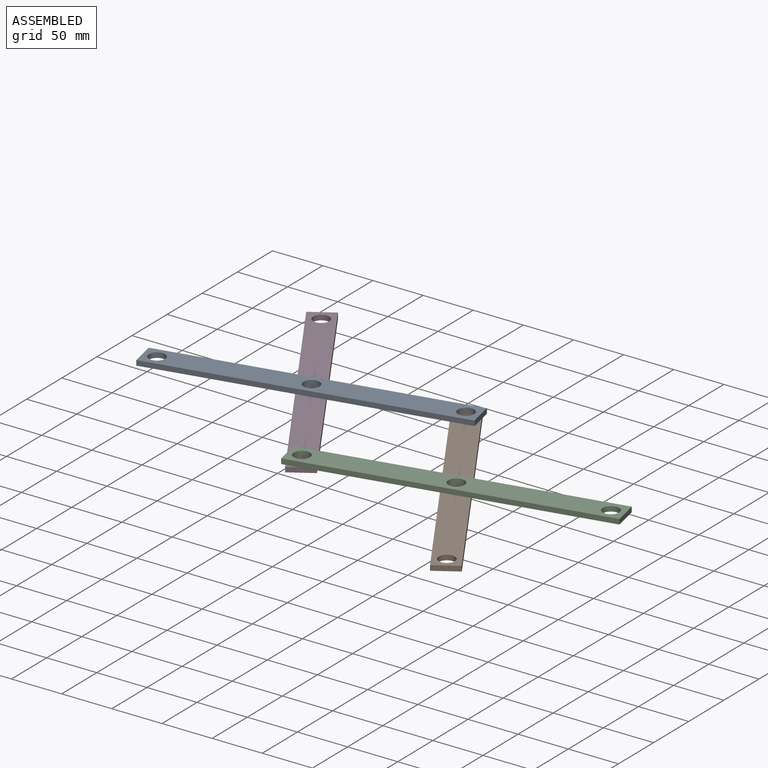
[diagram: assembled view]
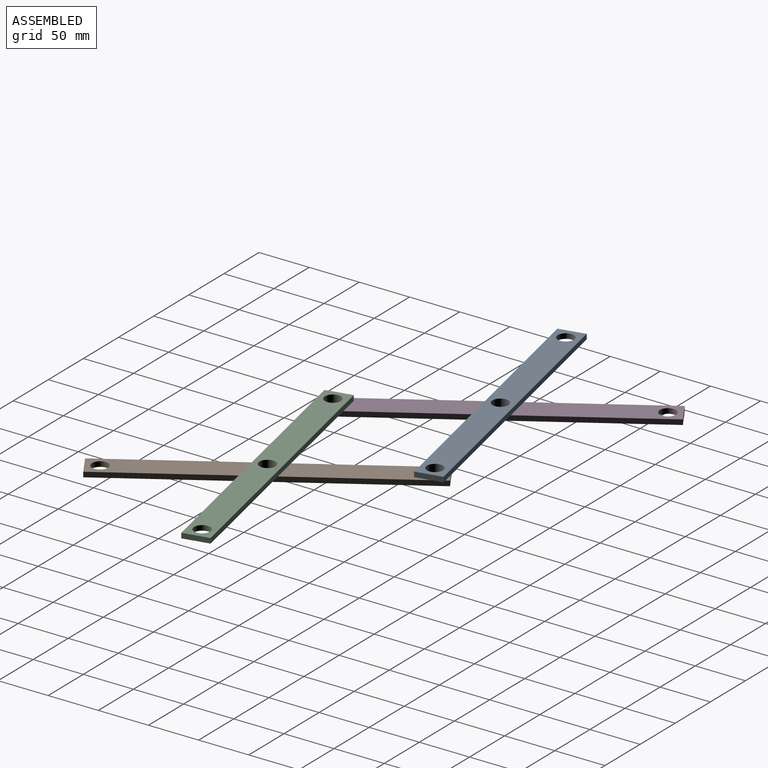
[diagram: assembled view, second angle]
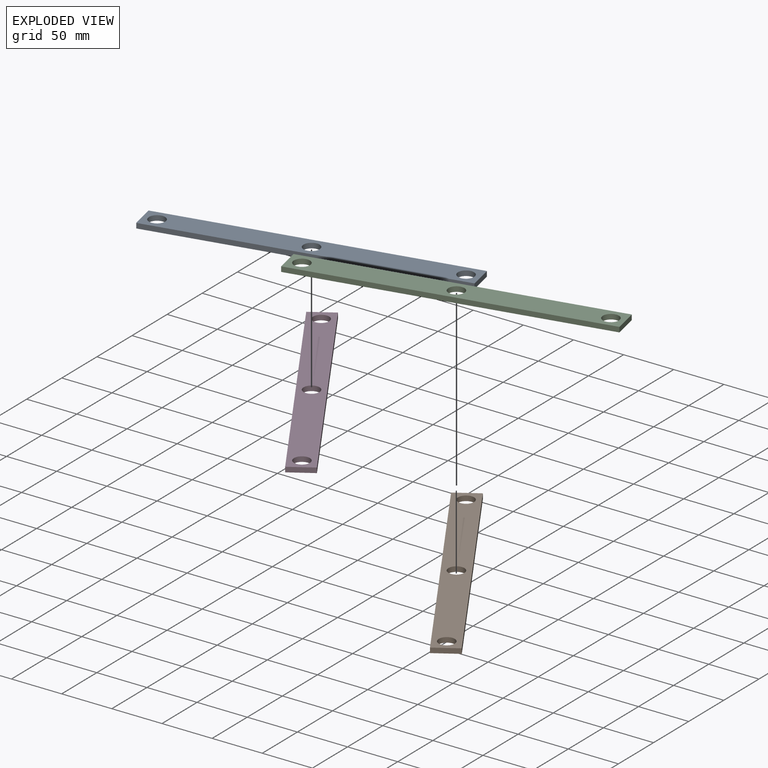
[diagram: exploded view]
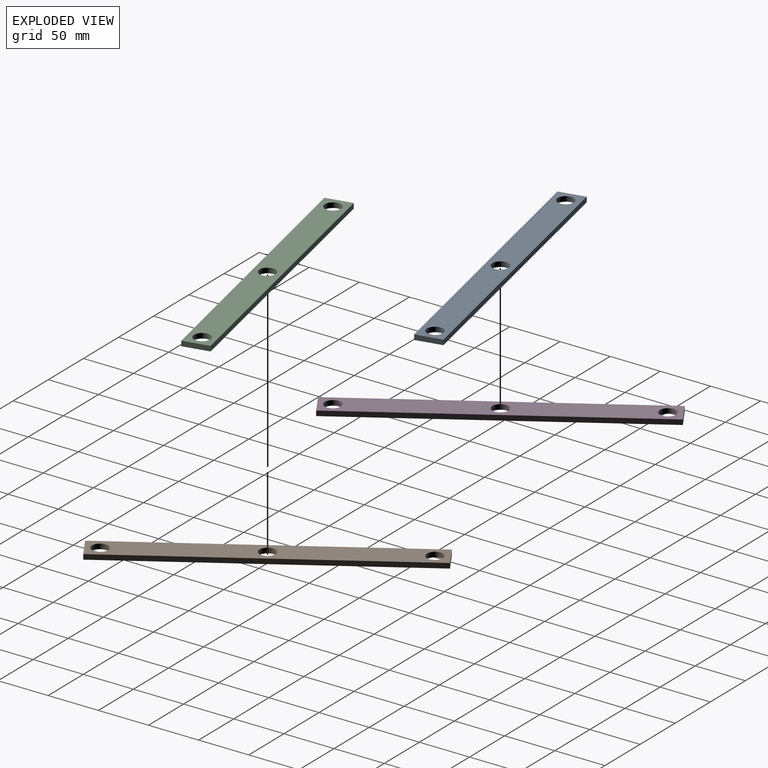
[diagram: exploded view, second angle]
ASSEMBLY  parts=4 mates=4
PART A: 9 faces, bbox 26x300x5 mm
  f0: plane 300x5mm, normal (-1,0,0), area 1500mm2, adj f1,f6,f7,f8
  f1: plane 26x5mm, normal (0,-1,0), area 130mm2, adj f0,f2,f7,f8
  f2: plane 300x5mm, normal (1,0,0), area 1500mm2, adj f1,f6,f7,f8
  f3: cylinder r=8mm len=16mm, axis (0,0,-1), area 251.3mm2, adj f7,f8
  f4: cylinder r=8mm len=16mm, axis (0,0,-1), area 251.3mm2, adj f7,f8
  f5: cylinder r=8mm len=16mm, axis (0,0,-1), area 251.3mm2, adj f7,f8
  f6: plane 26x5mm, normal (0,1,0), area 130mm2, adj f0,f2,f7,f8
  f7: plane 300x26mm, normal (0,0,1), area 7196.8mm2, adj f0,f1,f2,f3,f4,f5,f6
  f8: plane 300x26mm, normal (0,0,-1), area 7196.8mm2, adj f0,f1,f2,f3,f4,f5,f6
PART B: same geometry as A
PART C: same geometry as A
PART D: same geometry as A
PLACE A rot(axis=(0,0,-1),77.9deg) t=(138.93,43.04,-5)mm fixed
PLACE B rot(axis=(0,0,-1),148.3deg) t=(344.91,-44.88,-10)mm
PLACE C rot(axis=(0,0,1),102.1deg) t=(344.91,-44.88,-5)mm
PLACE D rot(axis=(0,0,-1),148.3deg) t=(138.93,43.04,-10)mm
MATE revolute C.f3 <-> B.f3  axis (0,0,-1) through (344.91,-44.88,-5)mm
MATE revolute D.f5 <-> C.f5  axis (0,0,1) through (210.93,-73.51,-5)mm
MATE revolute A.f3 <-> D.f3  axis (0,0,-1) through (138.93,43.04,-5)mm
MATE revolute B.f4 <-> A.f5  axis (0,0,1) through (272.9,71.67,-5)mm
